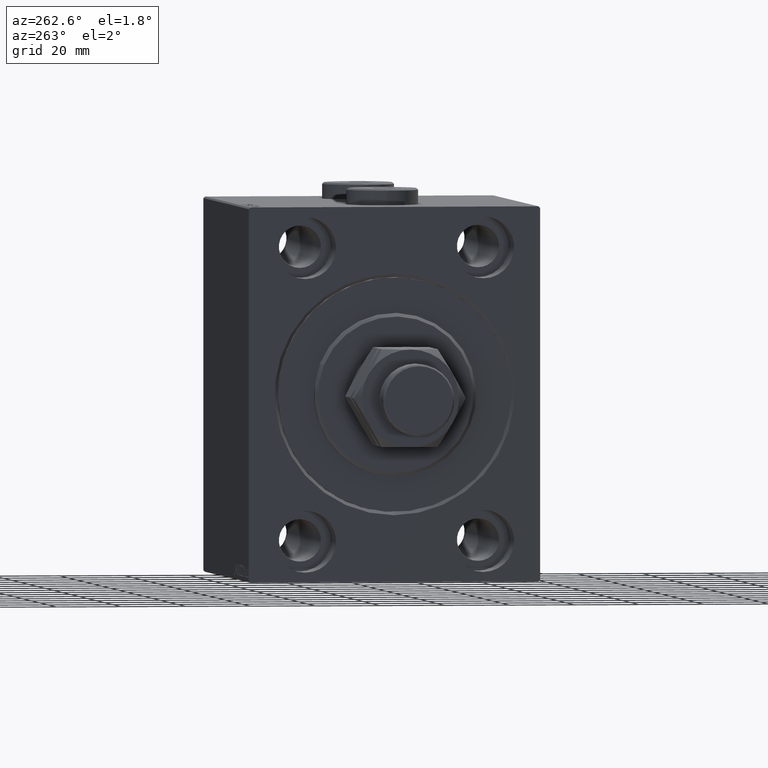
[diagram: clean part render]
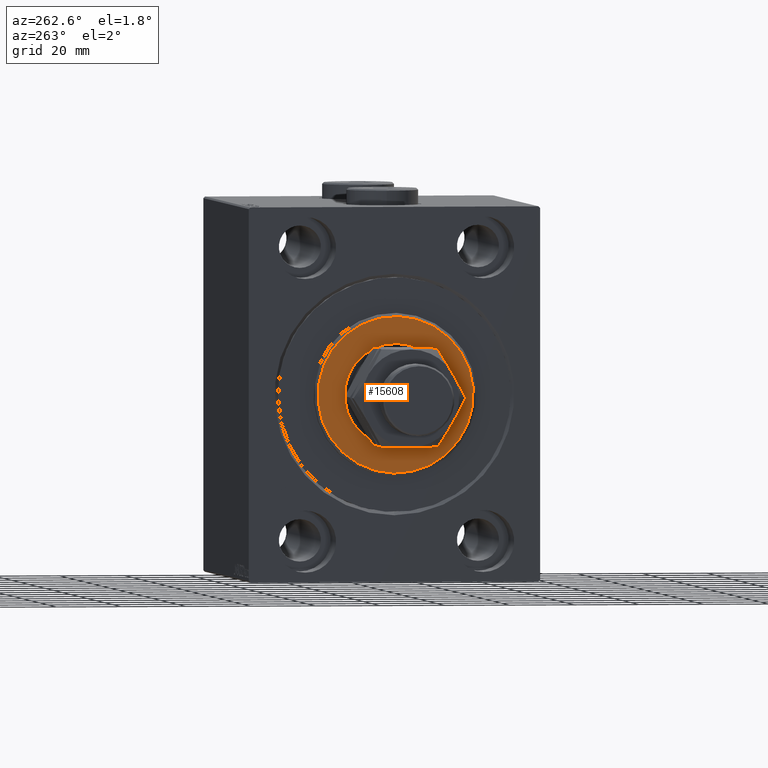
[diagram: same view with one face highlighted and labeled with its STEP entity id]
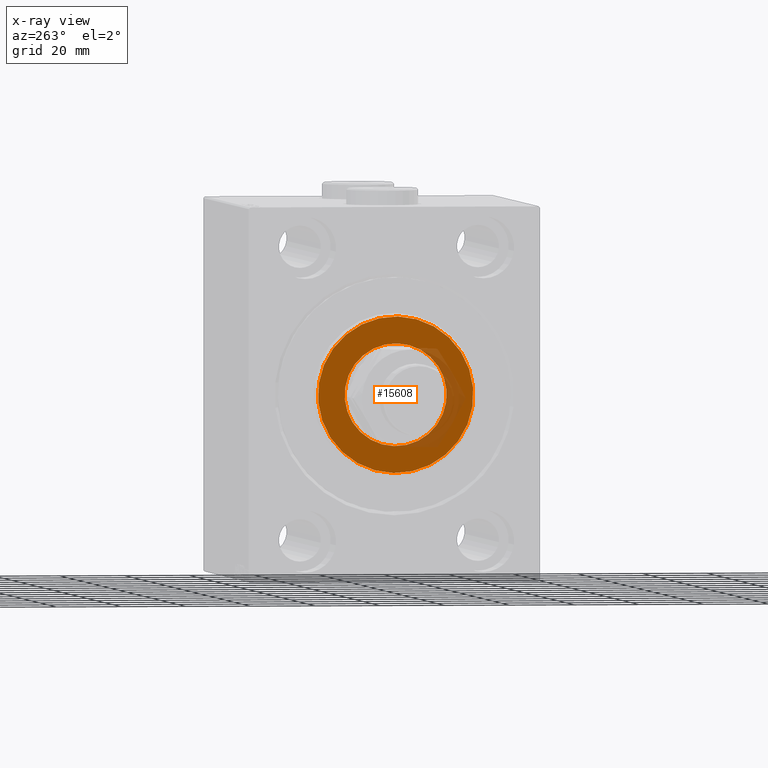
[diagram: x-ray of the same camera — body ghosted, the highlighted face saturated]
A machine part, auxiliary view. The second image highlights one B-rep face of the part: STEP entity #15608.
The next image is the same camera in x-ray: the body ghosted, the highlighted face saturated — about 15% of this face is hidden behind the body in this view.
In plain terms, the highlighted planar face has unit normal (-1, 0, 0).
Its self-contained STEP definition (entity closure, byte-faithful):
#4490 = EDGE_LOOP ( 'NONE', ( #36410, #22446 ) ) ;
#4708 = CIRCLE ( 'NONE', #31298, 24.00000000000000711 ) ;
#7287 = AXIS2_PLACEMENT_3D ( 'NONE', #31102, #27530, #42031 ) ;
#7392 = VERTEX_POINT ( 'NONE', #18697 ) ;
#8653 = EDGE_CURVE ( 'NONE', #28996, #16950, #4708, .T. ) ;
#9240 = EDGE_LOOP ( 'NONE', ( #37934, #34428 ) ) ;
#9487 = DIRECTION ( 'NONE',  ( 0.000000000000000000, 0.000000000000000000, -1.000000000000000000 ) ) ;
#9821 = DIRECTION ( 'NONE',  ( 1.000000000000000000, -0.000000000000000000, 0.000000000000000000 ) ) ;
#12225 = DIRECTION ( 'NONE',  ( -1.000000000000000000, 0.000000000000000000, -0.000000000000000000 ) ) ;
#13287 = AXIS2_PLACEMENT_3D ( 'NONE', #45836, #17322, #9487 ) ;
#14327 = EDGE_CURVE ( 'NONE', #29643, #7392, #23107, .T. ) ;
#15608 = ADVANCED_FACE ( 'NONE', ( #27793, #16846 ), #31365, .T. ) ;
#16846 = FACE_BOUND ( 'NONE', #9240, .T. ) ;
#16950 = VERTEX_POINT ( 'NONE', #25108 ) ;
#17322 = DIRECTION ( 'NONE',  ( 1.000000000000000000, -0.000000000000000000, 0.000000000000000000 ) ) ;
#18697 = CARTESIAN_POINT ( 'NONE',  ( 3.000000000000000000, 1.928818708657080950E-15, -15.75000000000000000 ) ) ;
#18698 = CIRCLE ( 'NONE', #7287, 15.75000000000000000 ) ;
#19767 = EDGE_CURVE ( 'NONE', #7392, #29643, #18698, .T. ) ;
#20724 = AXIS2_PLACEMENT_3D ( 'NONE', #42252, #27754, #21484 ) ;
#21484 = DIRECTION ( 'NONE',  ( 0.000000000000000000, 0.000000000000000000, -1.000000000000000000 ) ) ;
#22446 = ORIENTED_EDGE ( 'NONE', *, *, #8653, .T. ) ;
#23107 = CIRCLE ( 'NONE', #23903, 15.75000000000000000 ) ;
#23163 = CARTESIAN_POINT ( 'NONE',  ( 3.000000000000000000, 0.000000000000000000, 0.000000000000000000 ) ) ;
#23903 = AXIS2_PLACEMENT_3D ( 'NONE', #23163, #12225, #26720 ) ;
#25108 = CARTESIAN_POINT ( 'NONE',  ( 3.000000000000000000, 0.000000000000000000, 24.00000000000000711 ) ) ;
#26720 = DIRECTION ( 'NONE',  ( 0.000000000000000000, 0.000000000000000000, -1.000000000000000000 ) ) ;
#27530 = DIRECTION ( 'NONE',  ( -1.000000000000000000, 0.000000000000000000, -0.000000000000000000 ) ) ;
#27661 = DIRECTION ( 'NONE',  ( 0.000000000000000000, 0.000000000000000000, -1.000000000000000000 ) ) ;
#27754 = DIRECTION ( 'NONE',  ( 1.000000000000000000, -0.000000000000000000, 0.000000000000000000 ) ) ;
#27793 = FACE_OUTER_BOUND ( 'NONE', #4490, .T. ) ;
#28996 = VERTEX_POINT ( 'NONE', #34106 ) ;
#29643 = VERTEX_POINT ( 'NONE', #40702 ) ;
#29820 = CIRCLE ( 'NONE', #20724, 24.00000000000000711 ) ;
#31102 = CARTESIAN_POINT ( 'NONE',  ( 3.000000000000000000, 0.000000000000000000, 0.000000000000000000 ) ) ;
#31298 = AXIS2_PLACEMENT_3D ( 'NONE', #45700, #9821, #27661 ) ;
#31365 = PLANE ( 'NONE',  #13287 ) ;
#33961 = EDGE_CURVE ( 'NONE', #16950, #28996, #29820, .T. ) ;
#34106 = CARTESIAN_POINT ( 'NONE',  ( 3.000000000000000000, 3.000384657911015469E-15, -24.00000000000000711 ) ) ;
#34428 = ORIENTED_EDGE ( 'NONE', *, *, #19767, .T. ) ;
#36410 = ORIENTED_EDGE ( 'NONE', *, *, #33961, .T. ) ;
#37934 = ORIENTED_EDGE ( 'NONE', *, *, #14327, .T. ) ;
#40702 = CARTESIAN_POINT ( 'NONE',  ( 3.000000000000000000, 0.000000000000000000, 15.75000000000000000 ) ) ;
#42031 = DIRECTION ( 'NONE',  ( 0.000000000000000000, 0.000000000000000000, -1.000000000000000000 ) ) ;
#42252 = CARTESIAN_POINT ( 'NONE',  ( 3.000000000000000000, 0.000000000000000000, 0.000000000000000000 ) ) ;
#45700 = CARTESIAN_POINT ( 'NONE',  ( 3.000000000000000000, 0.000000000000000000, 0.000000000000000000 ) ) ;
#45836 = CARTESIAN_POINT ( 'NONE',  ( 3.000000000000000000, 0.000000000000000000, 0.000000000000000000 ) ) ;